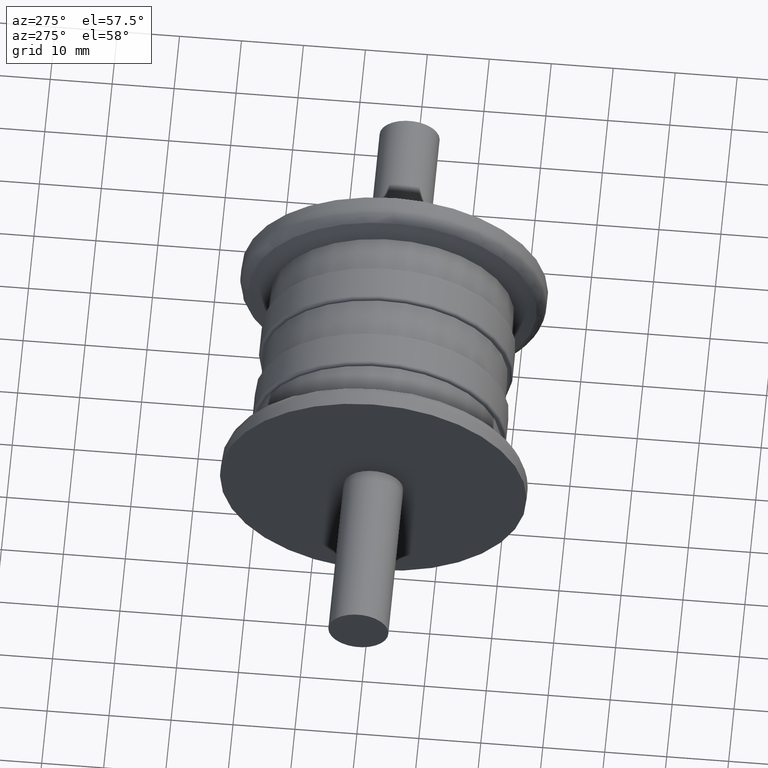
[diagram: clean part render]
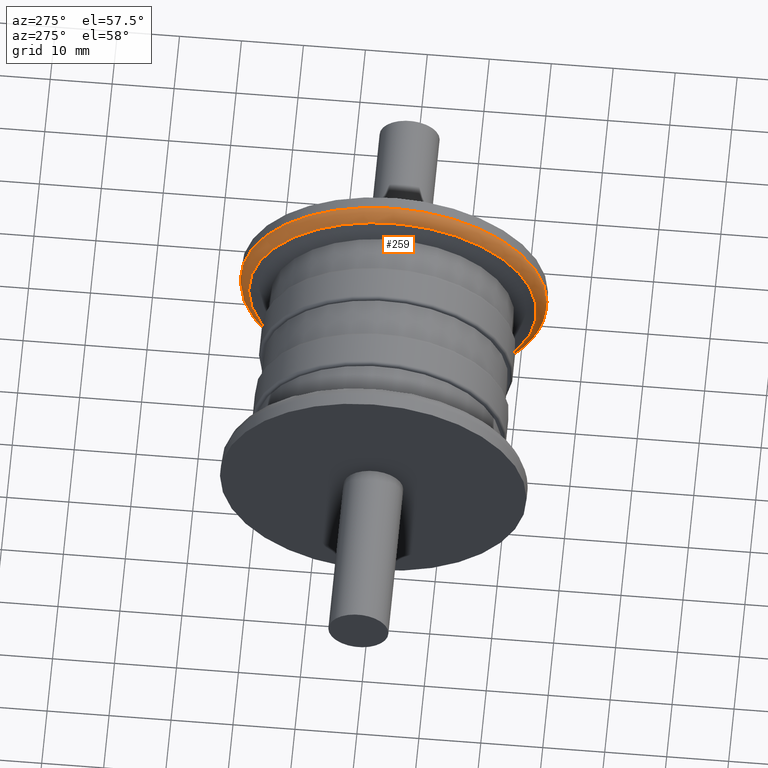
[diagram: same view with one face highlighted and labeled with its STEP entity id]
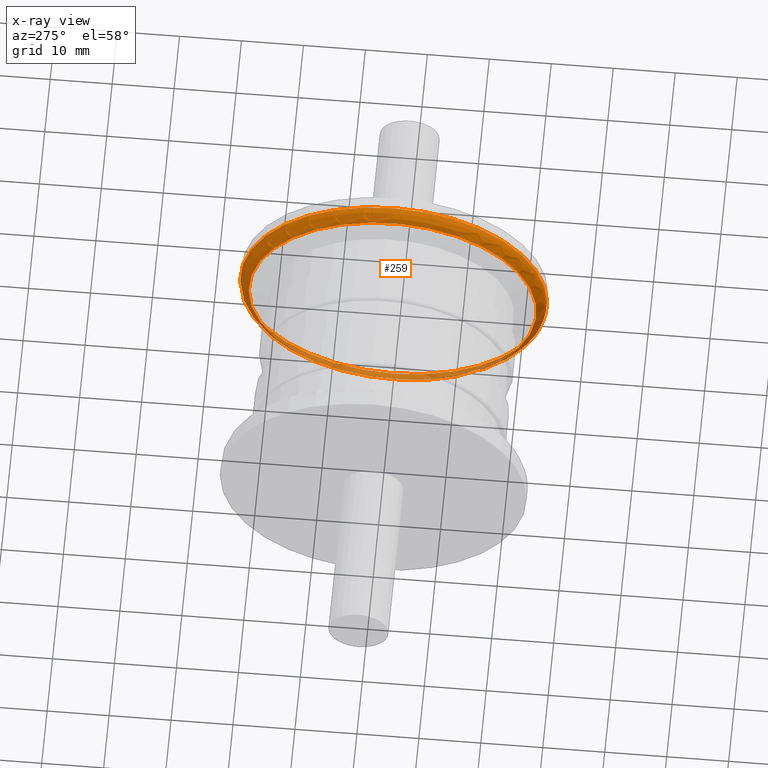
[diagram: x-ray of the same camera — body ghosted, the highlighted face saturated]
A machine part, auxiliary view. The second image highlights one B-rep face of the part: STEP entity #259.
The next image is the same camera in x-ray: the body ghosted, the highlighted face saturated — about 18% of this face is hidden behind the body in this view.
In plain terms, the highlighted toroidal blend (fillet) surface has major radius 22.75 mm and minor (blend) radius 2 mm.
Its self-contained STEP definition (entity closure, byte-faithful):
#37=FACE_BOUND('',#89,.T.);
#60=FACE_OUTER_BOUND('',#88,.T.);
#88=EDGE_LOOP('',(#208));
#89=EDGE_LOOP('',(#209));
#134=CIRCLE('',#291,23.2350712500727);
#135=CIRCLE('',#292,24.75);
#158=VERTEX_POINT('',#445);
#159=VERTEX_POINT('',#447);
#182=EDGE_CURVE('',#158,#158,#134,.T.);
#183=EDGE_CURVE('',#159,#159,#135,.T.);
#208=ORIENTED_EDGE('',*,*,#182,.T.);
#209=ORIENTED_EDGE('',*,*,#183,.T.);
#251=TOROIDAL_SURFACE('',#290,22.75,2.);
#259=ADVANCED_FACE('',(#60,#37),#251,.T.);
#290=AXIS2_PLACEMENT_3D('',#444,#348,#349);
#291=AXIS2_PLACEMENT_3D('',#446,#350,#351);
#292=AXIS2_PLACEMENT_3D('',#448,#352,#353);
#348=DIRECTION('center_axis',(1.,2.24855296126614E-16,0.));
#349=DIRECTION('ref_axis',(0.,0.,-1.));
#350=DIRECTION('center_axis',(1.,1.91128834971261E-16,-3.79100879388468E-32));
#351=DIRECTION('ref_axis',(1.91128834971261E-16,-1.,3.06161699786838E-17));
#352=DIRECTION('center_axis',(-1.,-2.24855296126614E-16,0.));
#353=DIRECTION('ref_axis',(2.24287479722254E-16,-1.,1.83697019872103E-16));
#444=CARTESIAN_POINT('Origin',(17.8115528128088,4.00502198219895E-15,0.));
#445=CARTESIAN_POINT('',(15.8712678125182,23.2350712500727,-1.42273778171811E-15));
#446=CARTESIAN_POINT('Origin',(15.8712678125182,4.44089209850063E-15,-3.55684445429527E-15));
#447=CARTESIAN_POINT('',(17.8115528128088,24.75,-7.57750206972425E-15));
#448=CARTESIAN_POINT('Origin',(17.8115528128088,4.00502198219895E-15,0.));